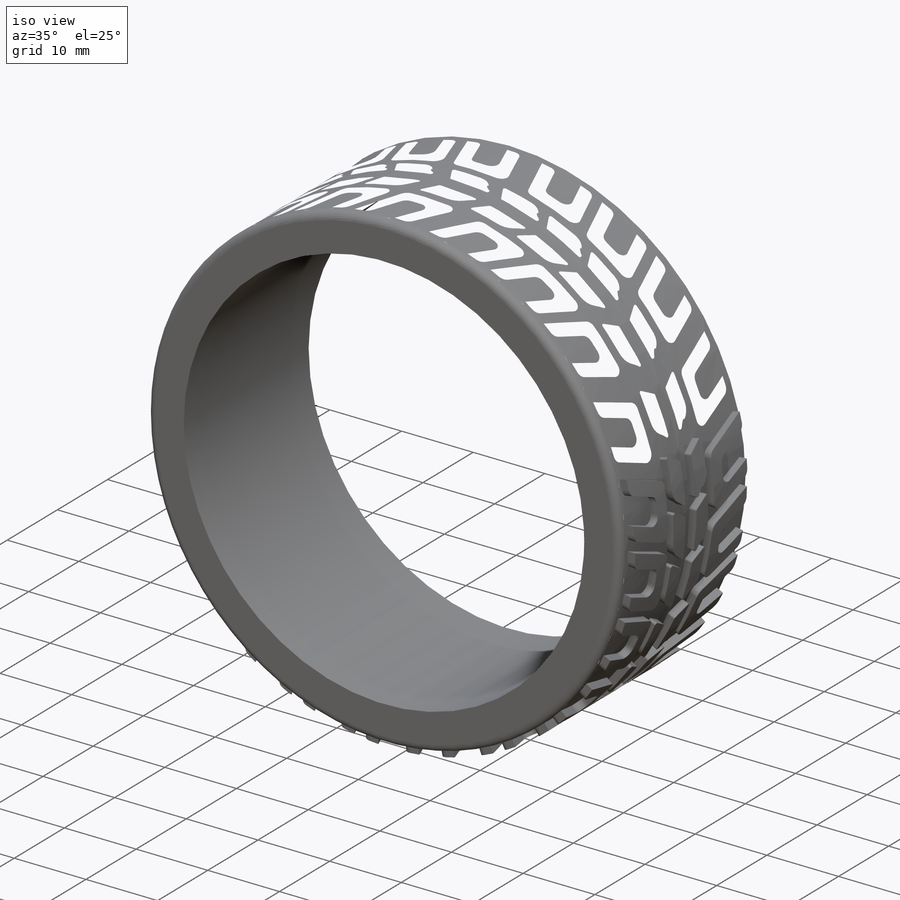
[diagram: iso view]
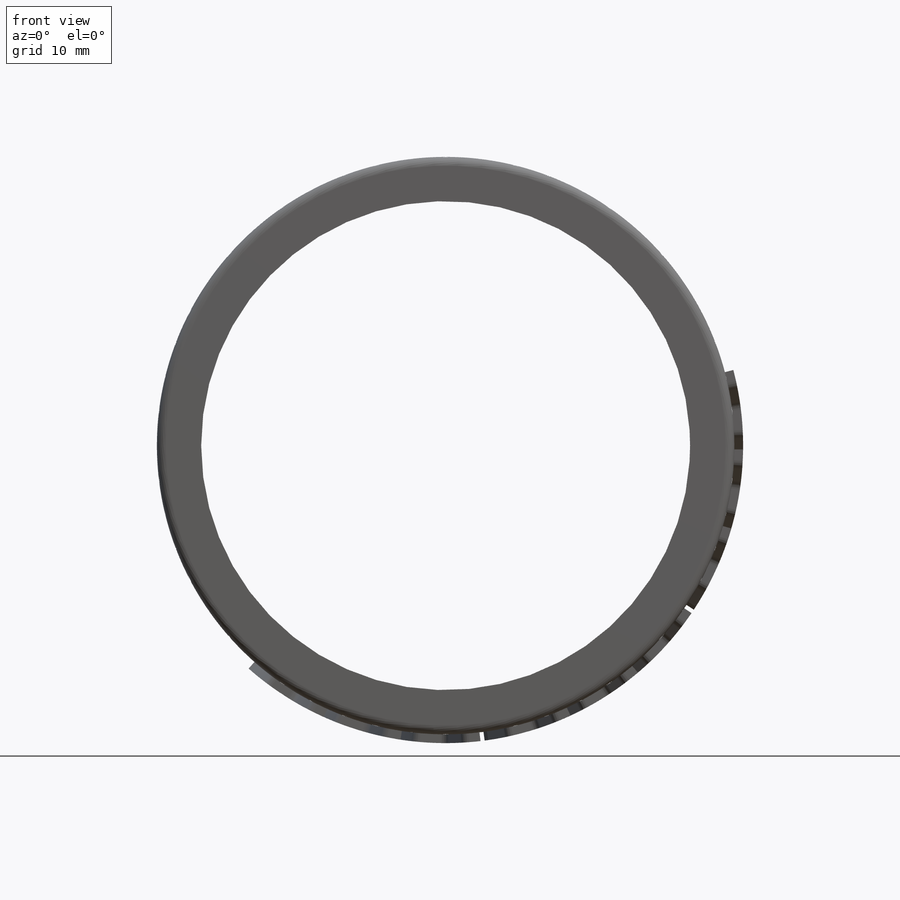
[diagram: front view]
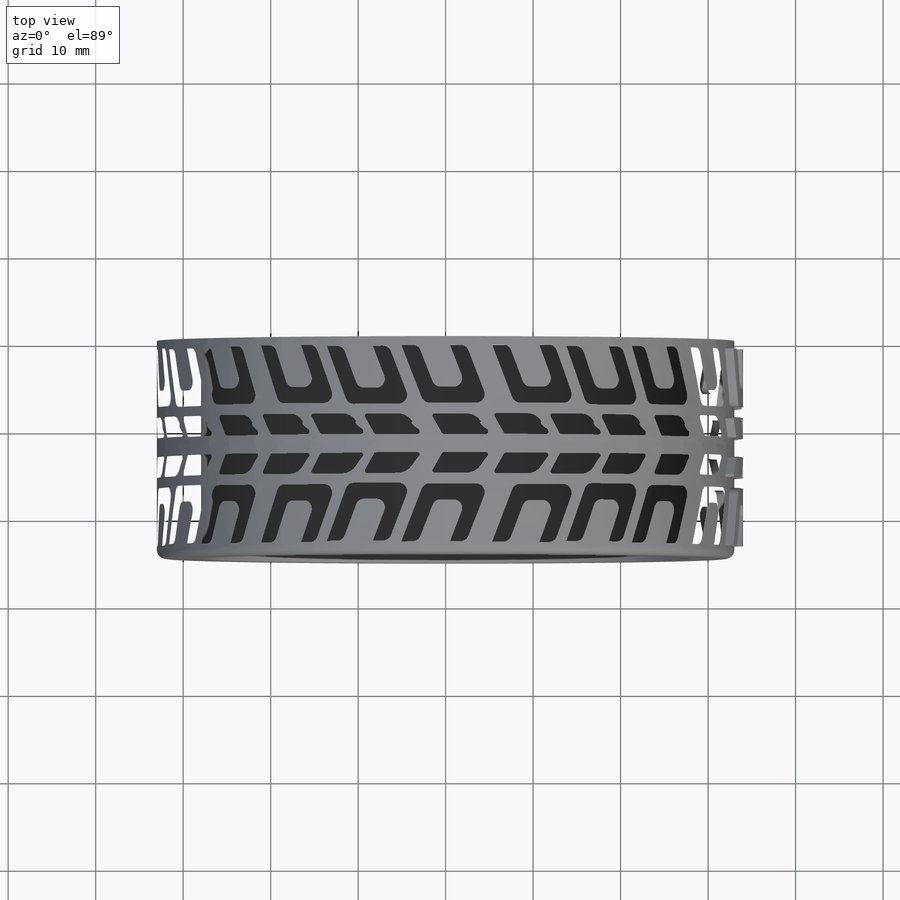
[diagram: top view]
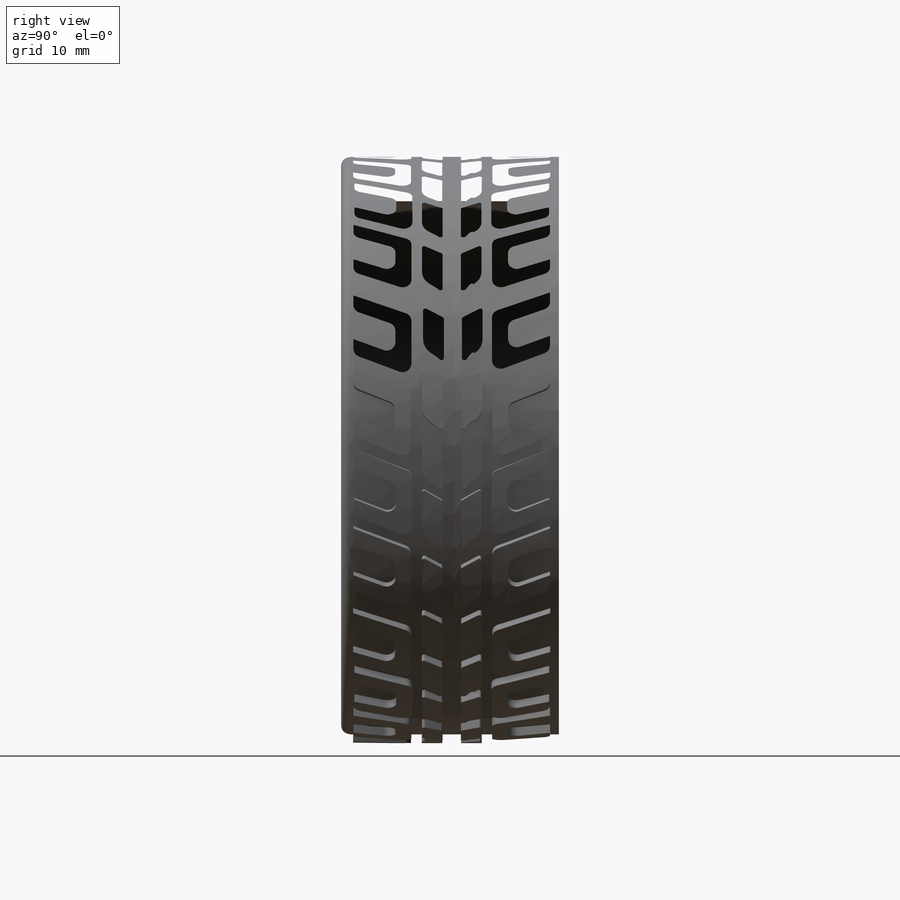
[diagram: right view]
SOLIDWORKS PART (.sldprt)
format: sldprt  version: not decoded by parser v0  size: 3,782,144 bytes
history: native  units: mm
features: plane x3, sketch x3, pattern_circular x2, material x1, extrude x1, fillet x1 (+10 scaffold rows collapsed)
feature tree (21):
  scaffold x10  (default folders/planes/origin — collapsed)
  material  "天然橡胶"
  plane  "前视基准面"
  plane  "上视基准面"
  plane  "右视基准面"
  sketch  "草图1"  dims[D1=66.0mm D2=55.88mm]
  extrude  "凸台-拉伸1"  Depth=24.892mm
  fillet  "圆角2"  Radius=1mm
  sketch  "草图6"  dims[c1.D1=2.0mm c1.D2=0.25mm c1.D3=0.25mm c1.D4=2.0mm c1.D5=0.25mm c1.D6=0.25mm c1.D7=2.0mm c1.D8=0.25mm c1.D9=0.25mm c1.D10=1.0mm c1.D11=1.0mm c1.D12=1.0mm c1.D13=1.0mm c1.D14=1.0mm c1.D15=1.0mm c1.D16=1.0mm c1.D17=1.0mm c1.D18=1.0mm c1.D19=1.0mm c2.D1=1.0mm]
  pattern_circular  "阵列(圆周)1"  Count=7 Angle=49deg
  sketch  "草图7"  dims[D1=2.0mm D2=0.25mm D3=0.25mm D4=1.0mm D5=1.0mm D6=1.0mm D7=1.0mm D8=1.0mm]
  pattern_circular  "包覆3"  [2 undecoded]
decode coverage: 6 of 7 modeling features carry decoded parameters
note: 2 parameter values undecoded
note: suppression state not decoded; provenance and decode notes live in map.json
